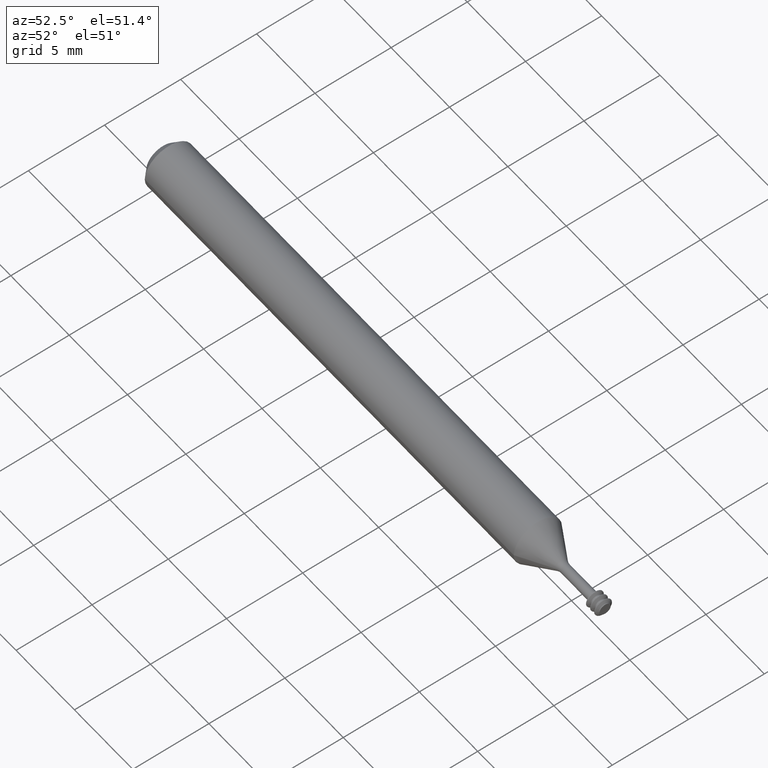
[diagram: clean part render]
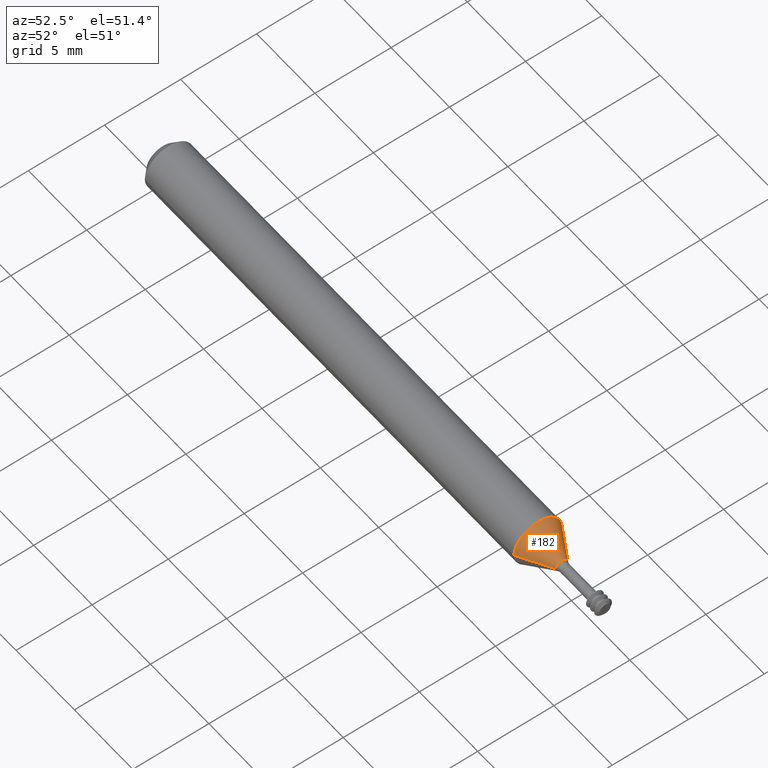
[diagram: same view with one face highlighted and labeled with its STEP entity id]
A machine part, auxiliary view. The second image highlights one B-rep face of the part: STEP entity #182.
In plain terms, the highlighted conical surface has half-angle 30 deg.
Its self-contained STEP definition (entity closure, byte-faithful):
#23 = VECTOR ( 'NONE', #843, 39.37007874015748143 ) ;
#48 = AXIS2_PLACEMENT_3D ( 'NONE', #928, #402, #1027 ) ;
#54 = CARTESIAN_POINT ( 'NONE',  ( 1.264657267242691896, -0.06235000000000025938, 0.0000000000000000000 ) ) ;
#92 = DIRECTION ( 'NONE',  ( 0.0000000000000000000, -1.000000000000000000, 0.0000000000000000000 ) ) ;
#114 = CONICAL_SURFACE ( 'NONE', #149, 0.01584936490538913639, 0.5235987755983025904 ) ;
#116 = CARTESIAN_POINT ( 'NONE',  ( 1.345198729810777927, 0.01584936490538900455, 4.788330096337040514E-18 ) ) ;
#121 = ORIENTED_EDGE ( 'NONE', *, *, #908, .F. ) ;
#126 = DIRECTION ( 'NONE',  ( -1.000000000000000000, -5.007945890630771977E-17, -0.0000000000000000000 ) ) ;
#131 = ORIENTED_EDGE ( 'NONE', *, *, #268, .F. ) ;
#149 = AXIS2_PLACEMENT_3D ( 'NONE', #499, #126, #411 ) ;
#168 = VECTOR ( 'NONE', #838, 39.37007874015748143 ) ;
#172 = CARTESIAN_POINT ( 'NONE',  ( 1.345198729810777927, -0.01584936490538926129, 0.0000000000000000000 ) ) ;
#182 = ADVANCED_FACE ( 'NONE', ( #622 ), #114, .T. ) ;
#253 = EDGE_CURVE ( 'NONE', #255, #351, #1070, .T. ) ;
#255 = VERTEX_POINT ( 'NONE', #116 ) ;
#268 = EDGE_CURVE ( 'NONE', #699, #1065, #269, .T. ) ;
#269 = LINE ( 'NONE', #924, #23 ) ;
#351 = VERTEX_POINT ( 'NONE', #730 ) ;
#394 = EDGE_CURVE ( 'NONE', #699, #255, #697, .T. ) ;
#402 = DIRECTION ( 'NONE',  ( -1.000000000000000000, -5.007945890630771977E-17, -0.0000000000000000000 ) ) ;
#411 = DIRECTION ( 'NONE',  ( 0.0000000000000000000, -1.000000000000000000, 0.0000000000000000000 ) ) ;
#447 = EDGE_LOOP ( 'NONE', ( #837, #576, #121, #131 ) ) ;
#499 = CARTESIAN_POINT ( 'NONE',  ( 1.345198729810777927, -1.277130708185053100E-16, 0.0000000000000000000 ) ) ;
#546 = CARTESIAN_POINT ( 'NONE',  ( 1.345198729810777927, -1.277130708185053100E-16, 0.0000000000000000000 ) ) ;
#576 = ORIENTED_EDGE ( 'NONE', *, *, #253, .T. ) ;
#622 = FACE_OUTER_BOUND ( 'NONE', #447, .T. ) ;
#635 = DIRECTION ( 'NONE',  ( -1.000000000000000000, -5.007945890630771977E-17, -0.0000000000000000000 ) ) ;
#697 = CIRCLE ( 'NONE', #905, 0.01584936490538913292 ) ;
#699 = VERTEX_POINT ( 'NONE', #172 ) ;
#706 = CIRCLE ( 'NONE', #48, 0.06235000000000012754 ) ;
#730 = CARTESIAN_POINT ( 'NONE',  ( 1.264657267242691896, 0.06235000000000000264, 7.635672792683768242E-18 ) ) ;
#837 = ORIENTED_EDGE ( 'NONE', *, *, #394, .T. ) ;
#838 = DIRECTION ( 'NONE',  ( -0.8660254037844368202, 0.5000000000000032196, 6.123233995736805479E-17 ) ) ;
#843 = DIRECTION ( 'NONE',  ( -0.8660254037844368202, -0.5000000000000032196, 0.0000000000000000000 ) ) ;
#905 = AXIS2_PLACEMENT_3D ( 'NONE', #546, #635, #92 ) ;
#908 = EDGE_CURVE ( 'NONE', #1065, #351, #706, .T. ) ;
#924 = CARTESIAN_POINT ( 'NONE',  ( 1.345198729810777927, -0.01584936490538926129, 0.0000000000000000000 ) ) ;
#928 = CARTESIAN_POINT ( 'NONE',  ( 1.264657267242691896, -1.317465436834376939E-16, 0.0000000000000000000 ) ) ;
#1027 = DIRECTION ( 'NONE',  ( 0.0000000000000000000, -1.000000000000000000, 0.0000000000000000000 ) ) ;
#1065 = VERTEX_POINT ( 'NONE', #54 ) ;
#1070 = LINE ( 'NONE', #1100, #168 ) ;
#1100 = CARTESIAN_POINT ( 'NONE',  ( 1.345198729810777927, 0.01584936490538900802, 1.940987399990319720E-18 ) ) ;